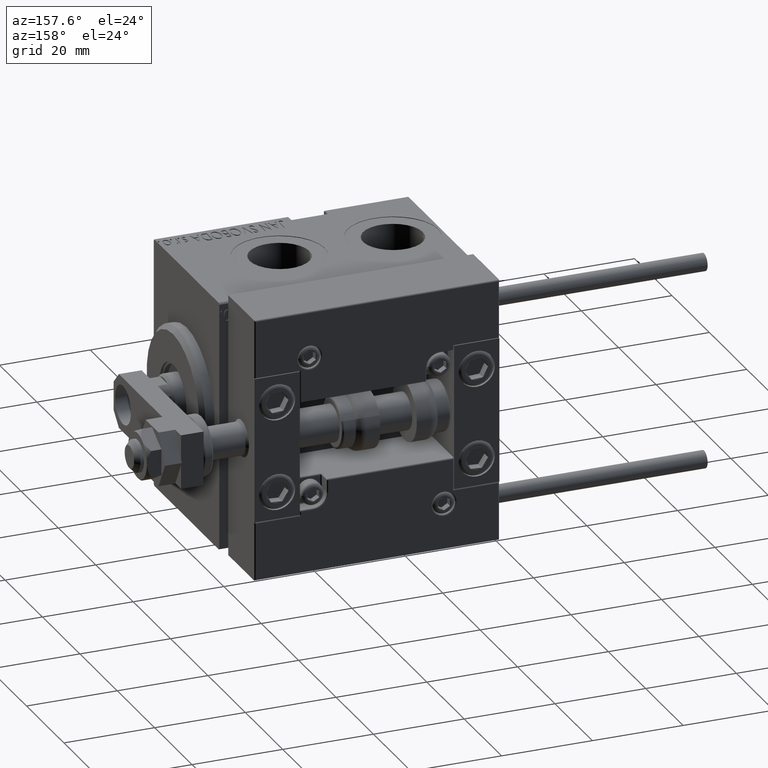
[diagram: clean part render]
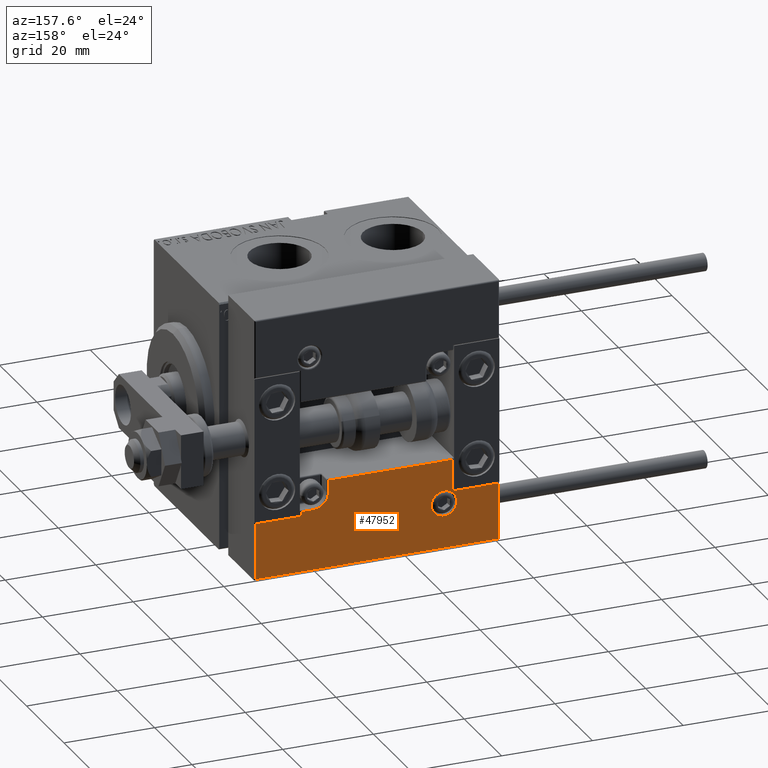
[diagram: same view with one face highlighted and labeled with its STEP entity id]
A machine part, auxiliary view. The second image highlights one B-rep face of the part: STEP entity #47952.
In plain terms, the highlighted planar face has unit normal (-0, 1, 0).
Its self-contained STEP definition (entity closure, byte-faithful):
#713 = EDGE_CURVE ( 'NONE', #8968, #14482, #29134, .T. ) ;
#1734 = EDGE_CURVE ( 'NONE', #30057, #4059, #10452, .T. ) ;
#1854 = CARTESIAN_POINT ( 'NONE',  ( -11.99999999999994849, 9.800000000000004263, 14.00000000000000000 ) ) ;
#1925 = ORIENTED_EDGE ( 'NONE', *, *, #17529, .T. ) ;
#1984 = VECTOR ( 'NONE', #17231, 1000.000000000000000 ) ;
#3183 = CIRCLE ( 'NONE', #16442, 3.299999999999997158 ) ;
#3538 = FACE_OUTER_BOUND ( 'NONE', #16725, .T. ) ;
#3718 = CARTESIAN_POINT ( 'NONE',  ( -26.69999999999994600, 7.300000000000005151, 14.00000000000000000 ) ) ;
#4059 = VERTEX_POINT ( 'NONE', #10893 ) ;
#4829 = CARTESIAN_POINT ( 'NONE',  ( 10.69999999999999929, 3.000000000000003109, 14.00000000000000000 ) ) ;
#5302 = VERTEX_POINT ( 'NONE', #50398 ) ;
#5834 = CARTESIAN_POINT ( 'NONE',  ( 16.69999999999999929, 6.300000000000003375, 14.00000000000000000 ) ) ;
#5943 = EDGE_CURVE ( 'NONE', #19545, #33536, #19779, .T. ) ;
#6919 = EDGE_CURVE ( 'NONE', #38309, #25236, #50980, .T. ) ;
#7681 = EDGE_CURVE ( 'NONE', #5302, #30057, #37644, .T. ) ;
#7932 = VECTOR ( 'NONE', #35211, 1000.000000000000000 ) ;
#8028 = DIRECTION ( 'NONE',  ( 0.000000000000000000, -0.000000000000000000, -1.000000000000000000 ) ) ;
#8550 = CARTESIAN_POINT ( 'NONE',  ( -14.79999999999994920, 9.800000000000004263, 14.00000000000000000 ) ) ;
#8922 = VECTOR ( 'NONE', #42452, 1000.000000000000000 ) ;
#8968 = VERTEX_POINT ( 'NONE', #26523 ) ;
#9244 = CARTESIAN_POINT ( 'NONE',  ( 16.69999999999999929, 7.300000000000009592, 14.00000000000000000 ) ) ;
#9438 = DIRECTION ( 'NONE',  ( -0.000000000000000000, 1.000000000000000000, -0.000000000000000000 ) ) ;
#10392 = CARTESIAN_POINT ( 'NONE',  ( -16.69999999999999218, 3.252606517456513302E-15, 14.00000000000000000 ) ) ;
#10452 = LINE ( 'NONE', #37125, #45862 ) ;
#10536 = ORIENTED_EDGE ( 'NONE', *, *, #7681, .T. ) ;
#10893 = CARTESIAN_POINT ( 'NONE',  ( -16.69999999999999218, 7.300000000000003375, 14.00000000000000000 ) ) ;
#11140 = CARTESIAN_POINT ( 'NONE',  ( -16.69999999999999218, 0.3000000000000032085, 14.00000000000000000 ) ) ;
#11217 = VECTOR ( 'NONE', #33392, 1000.000000000000000 ) ;
#11996 = ORIENTED_EDGE ( 'NONE', *, *, #42072, .T. ) ;
#12182 = DIRECTION ( 'NONE',  ( 0.000000000000000000, -0.000000000000000000, -1.000000000000000000 ) ) ;
#12193 = CARTESIAN_POINT ( 'NONE',  ( 16.69999999999999929, 7.000000000000009770, 14.00000000000000000 ) ) ;
#12273 = CARTESIAN_POINT ( 'NONE',  ( 26.70000000000006324, 19.70000000000001705, 14.00000000000000000 ) ) ;
#13317 = CARTESIAN_POINT ( 'NONE',  ( 10.69999999999999929, 3.000000000000003109, 14.00000000000000000 ) ) ;
#13849 = VECTOR ( 'NONE', #46847, 1000.000000000000000 ) ;
#14272 = CARTESIAN_POINT ( 'NONE',  ( 26.70000000000006324, 7.300000000000007816, 14.00000000000000000 ) ) ;
#14482 = VERTEX_POINT ( 'NONE', #4829 ) ;
#14713 = LINE ( 'NONE', #22235, #23729 ) ;
#15695 = ORIENTED_EDGE ( 'NONE', *, *, #38281, .T. ) ;
#15892 = DIRECTION ( 'NONE',  ( 0.000000000000000000, 1.000000000000000000, -0.000000000000000000 ) ) ;
#16305 = EDGE_CURVE ( 'NONE', #29037, #49495, #49674, .T. ) ;
#16442 = AXIS2_PLACEMENT_3D ( 'NONE', #25472, #45340, #21060 ) ;
#16723 = LINE ( 'NONE', #29159, #1984 ) ;
#16725 = EDGE_LOOP ( 'NONE', ( #11996, #39933, #41465, #50583, #50297, #25147, #46597, #50339, #15695, #10536, #32361 ) ) ;
#17231 = DIRECTION ( 'NONE',  ( 1.000000000000000000, -0.000000000000000000, 0.000000000000000000 ) ) ;
#17529 = EDGE_CURVE ( 'NONE', #49495, #29037, #43980, .T. ) ;
#19334 = PLANE ( 'NONE',  #23946 ) ;
#19426 = LINE ( 'NONE', #12193, #7932 ) ;
#19545 = VERTEX_POINT ( 'NONE', #14272 ) ;
#19779 = LINE ( 'NONE', #35025, #41916 ) ;
#20277 = VECTOR ( 'NONE', #9438, 1000.000000000000000 ) ;
#21060 = DIRECTION ( 'NONE',  ( 1.000000000000000000, 0.000000000000000000, 0.000000000000000000 ) ) ;
#21735 = LINE ( 'NONE', #25635, #11217 ) ;
#22235 = CARTESIAN_POINT ( 'NONE',  ( -26.99999999999993605, 19.70000000000002061, 14.00000000000000000 ) ) ;
#23227 = FACE_BOUND ( 'NONE', #40134, .T. ) ;
#23306 = DIRECTION ( 'NONE',  ( 1.000000000000000000, 0.000000000000000000, 0.000000000000000000 ) ) ;
#23568 = CARTESIAN_POINT ( 'NONE',  ( -14.79999999999994920, 9.800000000000004263, 14.00000000000000000 ) ) ;
#23729 = VECTOR ( 'NONE', #38255, 1000.000000000000000 ) ;
#23946 = AXIS2_PLACEMENT_3D ( 'NONE', #49866, #31269, #38231 ) ;
#25147 = ORIENTED_EDGE ( 'NONE', *, *, #38929, .T. ) ;
#25236 = VERTEX_POINT ( 'NONE', #5834 ) ;
#25472 = CARTESIAN_POINT ( 'NONE',  ( 13.99999999999999822, 3.000000000000002665, 14.00000000000000000 ) ) ;
#25531 = DIRECTION ( 'NONE',  ( -8.006416042969869188E-16, -1.000000000000000000, 0.000000000000000000 ) ) ;
#25635 = CARTESIAN_POINT ( 'NONE',  ( 27.00000000000006395, 7.300000000000007816, 14.00000000000000000 ) ) ;
#26523 = CARTESIAN_POINT ( 'NONE',  ( 10.69999999999999929, 0.3000000000000032085, 14.00000000000000000 ) ) ;
#27300 = CARTESIAN_POINT ( 'NONE',  ( -17.59999999999994813, 9.800000000000004263, 14.00000000000000000 ) ) ;
#27993 = DIRECTION ( 'NONE',  ( 1.000000000000000000, 0.000000000000000000, 0.000000000000000000 ) ) ;
#29037 = VERTEX_POINT ( 'NONE', #27300 ) ;
#29134 = LINE ( 'NONE', #13317, #20277 ) ;
#29159 = CARTESIAN_POINT ( 'NONE',  ( 11.00000000000000000, 0.3000000000000032085, 14.00000000000000000 ) ) ;
#29675 = CARTESIAN_POINT ( 'NONE',  ( -26.69999999999994600, 7.000000000000005329, 14.00000000000000000 ) ) ;
#29900 = AXIS2_PLACEMENT_3D ( 'NONE', #8550, #12182, #27993 ) ;
#30057 = VERTEX_POINT ( 'NONE', #3718 ) ;
#30602 = CARTESIAN_POINT ( 'NONE',  ( 17.00000000000000000, 6.300000000000003375, 14.00000000000000000 ) ) ;
#30967 = VERTEX_POINT ( 'NONE', #9244 ) ;
#31269 = DIRECTION ( 'NONE',  ( -0.000000000000000000, 0.000000000000000000, 1.000000000000000000 ) ) ;
#31674 = ORIENTED_EDGE ( 'NONE', *, *, #16305, .T. ) ;
#31721 = EDGE_CURVE ( 'NONE', #30967, #19545, #21735, .T. ) ;
#32361 = ORIENTED_EDGE ( 'NONE', *, *, #1734, .T. ) ;
#33298 = EDGE_CURVE ( 'NONE', #38035, #8968, #16723, .T. ) ;
#33392 = DIRECTION ( 'NONE',  ( 1.000000000000000000, -1.734723475976796001E-16, 0.000000000000000000 ) ) ;
#33536 = VERTEX_POINT ( 'NONE', #12273 ) ;
#35025 = CARTESIAN_POINT ( 'NONE',  ( 26.70000000000006324, 20.00000000000001776, 14.00000000000000000 ) ) ;
#35211 = DIRECTION ( 'NONE',  ( 9.912705577010318647E-16, 1.000000000000000000, 0.000000000000000000 ) ) ;
#37064 = VECTOR ( 'NONE', #25531, 1000.000000000000000 ) ;
#37125 = CARTESIAN_POINT ( 'NONE',  ( -16.99999999999999289, 7.300000000000003375, 14.00000000000000000 ) ) ;
#37644 = LINE ( 'NONE', #29675, #37064 ) ;
#38035 = VERTEX_POINT ( 'NONE', #11140 ) ;
#38231 = DIRECTION ( 'NONE',  ( 1.000000000000000000, 0.000000000000000000, 0.000000000000000000 ) ) ;
#38255 = DIRECTION ( 'NONE',  ( -1.000000000000000000, 6.424901762877063495E-17, -0.000000000000000000 ) ) ;
#38281 = EDGE_CURVE ( 'NONE', #33536, #5302, #14713, .T. ) ;
#38309 = VERTEX_POINT ( 'NONE', #42889 ) ;
#38929 = EDGE_CURVE ( 'NONE', #25236, #30967, #19426, .T. ) ;
#39933 = ORIENTED_EDGE ( 'NONE', *, *, #33298, .T. ) ;
#40134 = EDGE_LOOP ( 'NONE', ( #1925, #31674 ) ) ;
#41465 = ORIENTED_EDGE ( 'NONE', *, *, #713, .T. ) ;
#41916 = VECTOR ( 'NONE', #15892, 1000.000000000000000 ) ;
#42072 = EDGE_CURVE ( 'NONE', #4059, #38035, #50201, .T. ) ;
#42452 = DIRECTION ( 'NONE',  ( 1.000000000000000000, 5.782411586589357639E-16, -0.000000000000000000 ) ) ;
#42889 = CARTESIAN_POINT ( 'NONE',  ( 13.99999999999999822, 6.300000000000001599, 14.00000000000000000 ) ) ;
#43980 = CIRCLE ( 'NONE', #47252, 2.800000000000000266 ) ;
#44906 = EDGE_CURVE ( 'NONE', #14482, #38309, #3183, .T. ) ;
#45340 = DIRECTION ( 'NONE',  ( 0.000000000000000000, -0.000000000000000000, -1.000000000000000000 ) ) ;
#45862 = VECTOR ( 'NONE', #49007, 1000.000000000000000 ) ;
#46597 = ORIENTED_EDGE ( 'NONE', *, *, #31721, .T. ) ;
#46847 = DIRECTION ( 'NONE',  ( 0.000000000000000000, -1.000000000000000000, 0.000000000000000000 ) ) ;
#47252 = AXIS2_PLACEMENT_3D ( 'NONE', #23568, #8028, #23306 ) ;
#47952 = ADVANCED_FACE ( 'NONE', ( #23227, #3538 ), #19334, .T. ) ;
#49007 = DIRECTION ( 'NONE',  ( 1.000000000000000000, -1.734723475976815230E-16, 0.000000000000000000 ) ) ;
#49495 = VERTEX_POINT ( 'NONE', #1854 ) ;
#49674 = CIRCLE ( 'NONE', #29900, 2.800000000000000266 ) ;
#49866 = CARTESIAN_POINT ( 'NONE',  ( 0.000000000000000000, 0.000000000000000000, 14.00000000000000000 ) ) ;
#50201 = LINE ( 'NONE', #10392, #13849 ) ;
#50297 = ORIENTED_EDGE ( 'NONE', *, *, #6919, .T. ) ;
#50339 = ORIENTED_EDGE ( 'NONE', *, *, #5943, .T. ) ;
#50398 = CARTESIAN_POINT ( 'NONE',  ( -26.69999999999993534, 19.70000000000002061, 14.00000000000000000 ) ) ;
#50583 = ORIENTED_EDGE ( 'NONE', *, *, #44906, .T. ) ;
#50980 = LINE ( 'NONE', #30602, #8922 ) ;